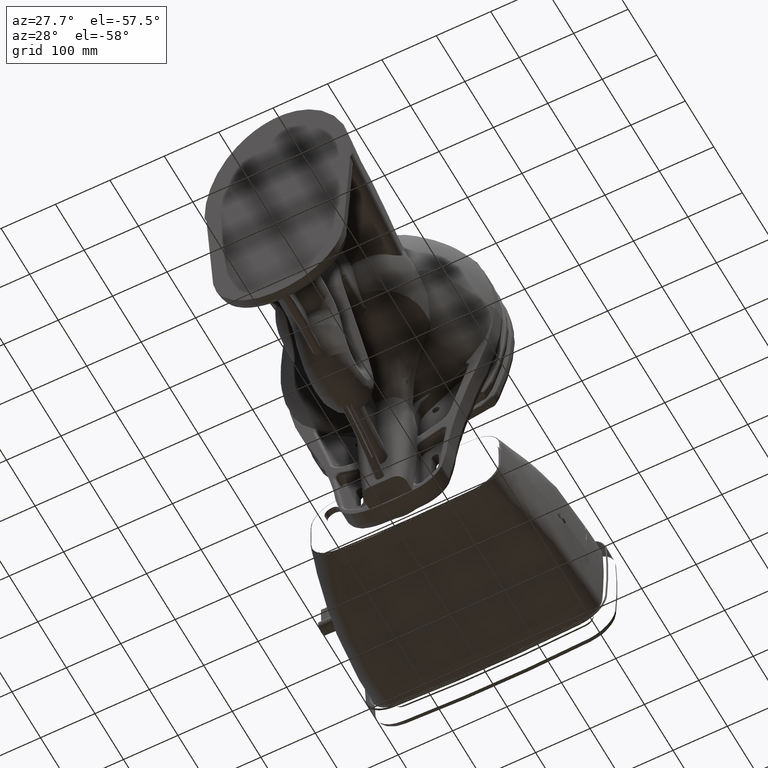
[diagram: clean part render]
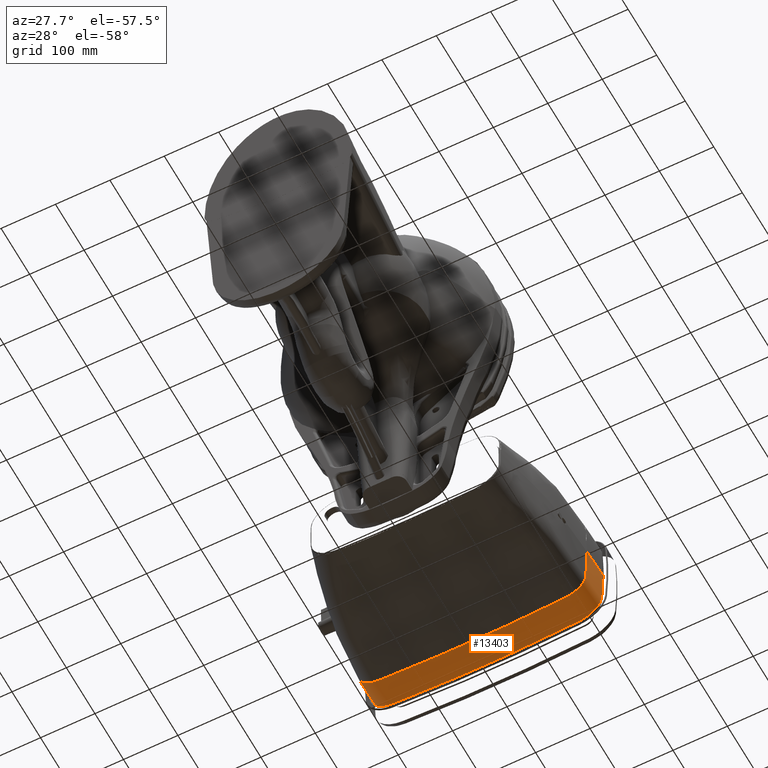
[diagram: same view with one face highlighted and labeled with its STEP entity id]
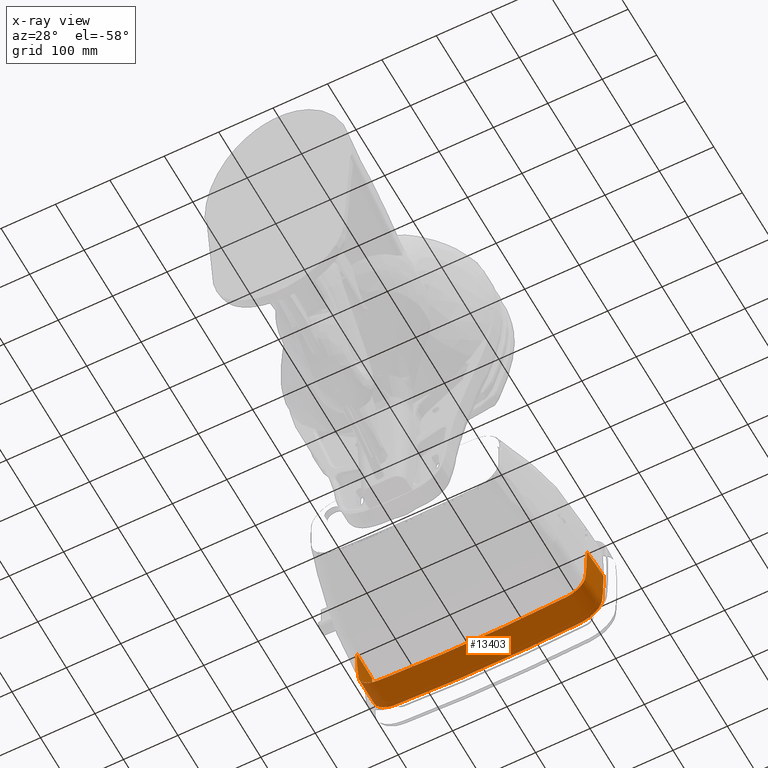
[diagram: x-ray of the same camera — body ghosted, the highlighted face saturated]
A machine part, auxiliary view. The second image highlights one B-rep face of the part: STEP entity #13403.
The next image is the same camera in x-ray: the body ghosted, the highlighted face saturated — about 0% of this face is hidden behind the body in this view.
In plain terms, the highlighted face is a freeform B-spline surface patch.
Its self-contained STEP definition (entity closure, byte-faithful):
#46 = CARTESIAN_POINT ( 'NONE',  ( 6.820338753599607200, 15.85406676531614200, 26.71273399184173400 ) ) ;
#702 = CARTESIAN_POINT ( 'NONE',  ( 5.117396129576771800, 15.98755824814606200, 26.71256506782086900 ) ) ;
#751 = CARTESIAN_POINT ( 'NONE',  ( 3.424997761772677700, 16.10240241501496100, 27.42073061689685100 ) ) ;
#1165 = B_SPLINE_CURVE_WITH_KNOTS ( 'NONE', 3,
 ( #134198, #106190, #61450, #30761, #137474, #92822, #154161, #106838, #16113, #78826, #168208, #92151, #62111, #94131, #14797, #62777, #122198, #46119, #123498, #1373, #152839, #32091, #46, #153503, #702, #138800, #78172, #168859, #185548, #121523, #76861, #184903, #183591, #47422, #76204, #107504, #169537, #152188, #16772, #31429, #93486, #122856, #108173, #138144, #2039, #46769, #77533, #30112, #184253, #136830, #108837, #45477, #17436, #60800, #182931, #124144 ),
 .UNSPECIFIED., .F., .F.,
 ( 4, 1, 1, 1, 2, 1, 1, 1, 1, 1, 1, 1, 1, 1, 1, 1, 1, 1, 1, 1, 2, 1, 1, 1, 1, 1, 1, 1, 2, 1, 1, 1, 1, 1, 1, 1, 1, 1, 1, 1, 1, 1, 1, 1, 2, 1, 1, 1, 1, 4 ),
 ( 0.0000000000000000000, 0.01213270309699998600, 0.02439544432099999300, 0.03665818554499999900, 0.04892092676799997300, 0.05265142102800002300, 0.05638191528899999500, 0.06011240954899999000, 0.06384290380899998500, 0.06757339806899997900, 0.07130389232899997400, 0.07503438658900002400, 0.07876488084900001900, 0.08249537510999999100, 0.08622586936999998600, 0.08995636362999998000, 0.09368685788999997500, 0.09741735215000002500, 0.1011478464100000200, 0.1048783406700000100, 0.1086088349300000100, 0.1439461980399999700, 0.1792835611490000100, 0.2146209242580000000, 0.2499582873680000200, 0.2852956504770000100, 0.3206330135859999900, 0.3559703766960000100, 0.3913077398050000000, 0.3950382340649999900, 0.3987687283249999900, 0.4024992225852199700, 0.4062297168453600200, 0.4099602111055000200, 0.4136907053656300200, 0.4174211996257700100, 0.4211516938859000100, 0.4248821881460400100, 0.4286126824061700100, 0.4323431766663100000, 0.4360736709264400000, 0.4398041651865800000, 0.4435346594467199900, 0.4472651537068499900, 0.4509956479669899900, 0.4571211919711100100, 0.4632467359752400200, 0.4754978239834900000, 0.4877489119917500200, 0.5000000000000000000 ),
 .UNSPECIFIED. ) ;
#1373 = CARTESIAN_POINT ( 'NONE',  ( 7.205990626616142900, 15.75723881719685000, 26.71285674890630100 ) ) ;
#2039 = CARTESIAN_POINT ( 'NONE',  ( -8.114598921248031600, 14.98711700275196900, 26.71383803616535600 ) ) ;
#2750 = CARTESIAN_POINT ( 'NONE',  ( 7.074353315819291900, 15.82779921444763700, 27.42107806852834500 ) ) ;
#3405 = CARTESIAN_POINT ( 'NONE',  ( 7.205990626616142900, 15.75723881719685000, 26.71285674890630100 ) ) ;
#4724 = CARTESIAN_POINT ( 'NONE',  ( 5.117396129576771800, 15.98755824814606200, 26.71256506782086900 ) ) ;
#4882 = CARTESIAN_POINT ( 'NONE',  ( -8.364405608354331900, 12.25566634200157500, 28.13392187657874300 ) ) ;
#5215 = CARTESIAN_POINT ( 'NONE',  ( 1.697676434187323200, 16.18155271733228400, 28.83724493587283500 ) ) ;
#5391 = CARTESIAN_POINT ( 'NONE',  ( 7.814928525689370400, 15.32803684059882000, 26.71340118047165600 ) ) ;
#5970 = ORIENTED_EDGE ( 'NONE', *, *, #29992, .T. ) ;
#6040 = CARTESIAN_POINT ( 'NONE',  ( 8.245996462256300700, 14.51698236082086500, 28.13104813365118400 ) ) ;
#6529 = CARTESIAN_POINT ( 'NONE',  ( -6.844335825759841900, 15.89442037892795400, 28.83761155912677400 ) ) ;
#6701 = CARTESIAN_POINT ( 'NONE',  ( 7.966674974724015500, 15.12455429737559200, 26.71365932957283500 ) ) ;
#7386 = CARTESIAN_POINT ( 'NONE',  ( 8.007568115939765400, 15.11846947229645700, 27.42197785453898000 ) ) ;
#7536 = CARTESIAN_POINT ( 'NONE',  ( -8.171396365791338200, 14.81303516229645800, 28.13067689441141900 ) ) ;
#7852 = VERTEX_POINT ( 'NONE', #32410 ) ;
#8196 = CARTESIAN_POINT ( 'NONE',  ( -7.244474834169292200, 15.77970465160315100, 27.42114293884449000 ) ) ;
#8851 = CARTESIAN_POINT ( 'NONE',  ( -7.959968529641733100, 15.18201385660275400, 28.83851579933858400 ) ) ;
#9201 = CARTESIAN_POINT ( 'NONE',  ( 8.270054468477953300, 14.47236950709842600, 28.83941187661889700 ) ) ;
#9372 = CARTESIAN_POINT ( 'NONE',  ( 8.283005298174803200, 13.73978700208346400, 27.42372712878189100 ) ) ;
#11297 = CARTESIAN_POINT ( 'NONE',  ( 8.294849570335433200, 11.53526371568543300, 26.71821353091260000 ) ) ;
#12206 = CARTESIAN_POINT ( 'NONE',  ( -7.726833724334646500, 15.48620813491968600, 26.71320465772992100 ) ) ;
#13403 = ADVANCED_FACE ( 'NONE', ( #77949 ), #165489, .T. ) ;
#13517 = CARTESIAN_POINT ( 'NONE',  ( -8.047205145055118100, 15.09920833553700900, 27.42200660560078500 ) ) ;
#14797 = CARTESIAN_POINT ( 'NONE',  ( 7.730387007674016400, 15.41678743216929200, 26.71328859153937400 ) ) ;
#15381 = ORIENTED_EDGE ( 'NONE', *, *, #101768, .T. ) ;
#15504 = CARTESIAN_POINT ( 'NONE',  ( -1.712116870024409600, 16.16953481721889900, 28.12895395835354500 ) ) ;
#16113 = CARTESIAN_POINT ( 'NONE',  ( 8.139288975789369800, 14.74034981362952700, 26.71414678301575300 ) ) ;
#16772 = CARTESIAN_POINT ( 'NONE',  ( -7.628566436346456900, 15.56419633512244100, 26.71310567561928900 ) ) ;
#16818 = CARTESIAN_POINT ( 'NONE',  ( -1.773395855447637900, 16.13442800609055200, 26.71238056189330800 ) ) ;
#17299 = ORIENTED_EDGE ( 'NONE', *, *, #155915, .T. ) ;
#17436 = CARTESIAN_POINT ( 'NONE',  ( -8.342651434921259900, 13.06672751769724300, 26.71627479329921000 ) ) ;
#18193 = CARTESIAN_POINT ( 'NONE',  ( 8.338758128550393800, 11.53598064712992200, 27.42652342462598700 ) ) ;
#19454 = CARTESIAN_POINT ( 'NONE',  ( 6.820338753599607200, 15.85406676531614200, 26.71273399184173400 ) ) ;
#19507 = CARTESIAN_POINT ( 'NONE',  ( 8.381914660978347700, 11.53724875084055200, 28.84313608936495800 ) ) ;
#20115 = CARTESIAN_POINT ( 'NONE',  ( 6.145537790224803000, 15.95972893014173300, 28.83752520364213000 ) ) ;
#20265 = CARTESIAN_POINT ( 'NONE',  ( -8.289343499102363600, 14.10919880750275700, 26.71495203402598400 ) ) ;
#20595 = CARTESIAN_POINT ( 'NONE',  ( 3.380722545196339200, 16.12830387691062800, 28.83731204895472900 ) ) ;
#20763 = CARTESIAN_POINT ( 'NONE',  ( 8.047034517376378200, 15.06976429123622000, 28.83865392912362700 ) ) ;
#21171 = CARTESIAN_POINT ( 'NONE',  ( -8.367655706444882200, 11.52966417506102400, 27.42653592578110300 ) ) ;
#21254 = CARTESIAN_POINT ( 'NONE',  ( -8.257372467519685300, 14.46467991610433200, 28.83942607199685100 ) ) ;
#21433 = CARTESIAN_POINT ( 'NONE',  ( 7.775694528317323800, 15.41561178387637700, 28.83821517165472800 ) ) ;
#22089 = CARTESIAN_POINT ( 'NONE',  ( 8.181520603423623000, 14.79269551425236200, 28.83900545312362200 ) ) ;
#22238 = CARTESIAN_POINT ( 'NONE',  ( -8.250921822181103600, 14.57423412914448900, 26.71436196129291200 ) ) ;
#22578 = CARTESIAN_POINT ( 'NONE',  ( 7.300235929260237500, 15.75049347437874100, 28.83779038301457100 ) ) ;
#22746 = CARTESIAN_POINT ( 'NONE',  ( 8.090607919765355800, 14.88051568780472600, 26.71396894591220700 ) ) ;
#22895 = CARTESIAN_POINT ( 'NONE',  ( -8.170157520011811100, 14.84667784484370200, 27.42232706320708500 ) ) ;
#23233 = CARTESIAN_POINT ( 'NONE',  ( 8.382104873937008100, 11.77810576095157700, 28.84283047668071000 ) ) ;
#23543 = CARTESIAN_POINT ( 'NONE',  ( -7.423074293724409900, 15.67743171970157500, 28.83788704170078900 ) ) ;
#24063 = CARTESIAN_POINT ( 'NONE',  ( 8.303418436544488300, 14.08234965605748100, 28.83990674631575100 ) ) ;
#24720 = CARTESIAN_POINT ( 'NONE',  ( 8.360530604722047300, 11.78352305722559000, 28.13451646652677200 ) ) ;
#26007 = CARTESIAN_POINT ( 'NONE',  ( 8.338956335507086600, 11.78894035449842400, 27.42620245537125700 ) ) ;
#27539 = CARTESIAN_POINT ( 'NONE',  ( -7.547085508712600100, 15.59655134183110200, 28.83798970047952900 ) ) ;
#28185 = CARTESIAN_POINT ( 'NONE',  ( -7.662982266696849900, 15.50629594450630000, 28.83810425261969000 ) ) ;
#28839 = CARTESIAN_POINT ( 'NONE',  ( -7.786987492893700800, 15.40948092409448800, 28.12991998796417500 ) ) ;
#29505 = CARTESIAN_POINT ( 'NONE',  ( -5.142348985208661500, 16.01198033026378200, 27.42084765015630100 ) ) ;
#29992 = EDGE_CURVE ( 'NONE', #144015, #145002, #114719, .T. ) ;
#30112 = CARTESIAN_POINT ( 'NONE',  ( -8.250921822181103600, 14.57423412914448900, 26.71436196129291200 ) ) ;
#30761 = CARTESIAN_POINT ( 'NONE',  ( 8.270115028075984800, 13.05832530963071000, 26.71628099316417600 ) ) ;
#30806 = CARTESIAN_POINT ( 'NONE',  ( -1.740408468236220600, 16.15751691652795300, 27.42066207174094900 ) ) ;
#31429 = CARTESIAN_POINT ( 'NONE',  ( -7.726833724334646500, 15.48620813491968600, 26.71320465772992100 ) ) ;
#32091 = CARTESIAN_POINT ( 'NONE',  ( 6.927765112602362100, 15.83874974462795200, 26.71275339807165500 ) ) ;
#32142 = CARTESIAN_POINT ( 'NONE',  ( -0.003763553027725196900, 16.18783101219921200, 28.12893028436024100 ) ) ;
#32410 = CARTESIAN_POINT ( 'NONE',  ( 8.294849570335433200, 11.53526371568543300, 26.71821353091260000 ) ) ;
#32845 = CARTESIAN_POINT ( 'NONE',  ( 8.360336394764173600, 11.53661469898582800, 28.13482975749527200 ) ) ;
#34121 = CARTESIAN_POINT ( 'NONE',  ( 6.857831809235827700, 15.89446856055472400, 28.83760781830669700 ) ) ;
#34593 = CARTESIAN_POINT ( 'NONE',  ( -8.364692668137795600, 12.24143547682637800, 28.84224707574528100 ) ) ;
#35418 = CARTESIAN_POINT ( 'NONE',  ( 7.327827232625197400, 15.70282903097559100, 26.71292575431929400 ) ) ;
#35559 = CARTESIAN_POINT ( 'NONE',  ( -8.368056898019686300, 11.53146127135354200, 28.84314793100236300 ) ) ;
#36064 = CARTESIAN_POINT ( 'NONE',  ( 8.208289386228740300, 14.67940403307834700, 28.13084205421850500 ) ) ;
#36218 = CARTESIAN_POINT ( 'NONE',  ( -8.364692668137795600, 12.24143547682637800, 28.84224707574528100 ) ) ;
#36573 = CARTESIAN_POINT ( 'NONE',  ( -8.221452992547243700, 14.62697880744842600, 28.83922012858307200 ) ) ;
#36888 = CARTESIAN_POINT ( 'NONE',  ( -8.367878624488188400, 11.76739981768464600, 27.42623427377086600 ) ) ;
#37222 = CARTESIAN_POINT ( 'NONE',  ( 8.381914660978347700, 11.53724875084055200, 28.84313608936495800 ) ) ;
#37390 = CARTESIAN_POINT ( 'NONE',  ( 8.232270613449999900, 14.63852166635315100, 28.83920106375984800 ) ) ;
#38726 = CARTESIAN_POINT ( 'NONE',  ( 7.559121946072834500, 15.59578354150669300, 28.12967947578661300 ) ) ;
#38870 = CARTESIAN_POINT ( 'NONE',  ( -8.040980652618111800, 15.05658962858267800, 28.83867496625905600 ) ) ;
#39207 = CARTESIAN_POINT ( 'NONE',  ( 8.378078789854724200, 12.26234228614370100, 28.84221605180314900 ) ) ;
#40029 = CARTESIAN_POINT ( 'NONE',  ( 8.237310941054724700, 14.44403481517441000, 27.42283355266062700 ) ) ;
#40687 = CARTESIAN_POINT ( 'NONE',  ( 8.176671426815747900, 14.58514842455984400, 26.71434370104291400 ) ) ;
#44200 = CARTESIAN_POINT ( 'NONE',  ( -7.966612341858268400, 15.19683688230275800, 28.13018985066771900 ) ) ;
#45477 = CARTESIAN_POINT ( 'NONE',  ( -8.314766496027559100, 13.67315768251850500, 26.71550531383543300 ) ) ;
#45527 = CARTESIAN_POINT ( 'NONE',  ( -0.01445268623980314900, 16.17615656722913500, 27.42063795722480900 ) ) ;
#46119 = CARTESIAN_POINT ( 'NONE',  ( 7.440036872635826800, 15.64107204767047300, 26.71300408484567200 ) ) ;
#46769 = CARTESIAN_POINT ( 'NONE',  ( -8.170095904228347200, 14.86097686330393800, 26.71399810462165500 ) ) ;
#47422 = CARTESIAN_POINT ( 'NONE',  ( -7.000999992393700700, 15.83868281605512100, 26.71275722353110300 ) ) ;
#47464 = CARTESIAN_POINT ( 'NONE',  ( -6.789463893976377800, 15.89415399776417300, 28.12930474020591000 ) ) ;
#49914 = CARTESIAN_POINT ( 'NONE',  ( -7.959968529641733100, 15.18201385660275400, 28.83851579933858400 ) ) ;
#50090 = CARTESIAN_POINT ( 'NONE',  ( 7.073227029608268900, 15.80307607132047200, 26.71279862372834700 ) ) ;
#50562 = CARTESIAN_POINT ( 'NONE',  ( -8.368056898019686300, 11.53146127135354200, 28.84314793100236300 ) ) ;
#50753 = CARTESIAN_POINT ( 'NONE',  ( 7.430941877272441200, 15.68090300037677300, 28.83787864813819400 ) ) ;
#50907 = CARTESIAN_POINT ( 'NONE',  ( -8.282158620472440400, 14.19103178239448800, 28.83977329846850800 ) ) ;
#51564 = CARTESIAN_POINT ( 'NONE',  ( -8.317786740586614200, 13.60271945262086700, 28.13221264892125700 ) ) ;
#51895 = CARTESIAN_POINT ( 'NONE',  ( -7.770583317677165700, 15.40695909749055300, 28.83823032557559100 ) ) ;
#52569 = CARTESIAN_POINT ( 'NONE',  ( 8.181520603423623000, 14.79269551425236200, 28.83900545312362200 ) ) ;
#52737 = CARTESIAN_POINT ( 'NONE',  ( 8.027301316158268900, 15.09411688126692900, 28.13031589233189300 ) ) ;
#52886 = CARTESIAN_POINT ( 'NONE',  ( -8.221452992547243700, 14.62697880744842600, 28.83922012858307200 ) ) ;
#53231 = CARTESIAN_POINT ( 'NONE',  ( 7.430941877272441200, 15.68090300037677300, 28.83787864813819400 ) ) ;
#53404 = CARTESIAN_POINT ( 'NONE',  ( 8.032609422743702200, 15.00810123910866300, 26.71380707391693200 ) ) ;
#54205 = CARTESIAN_POINT ( 'NONE',  ( -7.001827913755906100, 15.85779782043582700, 28.83765807013898200 ) ) ;
#54716 = CARTESIAN_POINT ( 'NONE',  ( 8.306185185396064000, 13.69684417501850300, 28.13208875396378500 ) ) ;
#55204 = CARTESIAN_POINT ( 'NONE',  ( 7.668665226300787700, 15.51312328739803100, 28.83809147243386000 ) ) ;
#55374 = CARTESIAN_POINT ( 'NONE',  ( 8.295050229291732100, 11.79204918697401500, 26.71788770731732000 ) ) ;
#56018 = CARTESIAN_POINT ( 'NONE',  ( 8.329365072617717300, 13.65390134795236300, 28.84045037814606300 ) ) ;
#57577 = CARTESIAN_POINT ( 'NONE',  ( -7.973256153074803600, 15.21165990800118300, 27.42186390099684700 ) ) ;
#58863 = CARTESIAN_POINT ( 'NONE',  ( -8.044092898834646700, 15.07789898206023500, 28.13034078642992200 ) ) ;
#59521 = CARTESIAN_POINT ( 'NONE',  ( -7.575769556925195900, 15.58939687322677200, 28.12969164398189300 ) ) ;
#60800 = CARTESIAN_POINT ( 'NONE',  ( -8.363896666787400800, 12.27816013649449000, 26.71727537670630400 ) ) ;
#60850 = CARTESIAN_POINT ( 'NONE',  ( -0.03632076545090551200, 16.15329068761023700, 26.71235616139724900 ) ) ;
#61450 = CARTESIAN_POINT ( 'NONE',  ( 8.290589785203543700, 12.30827967441102500, 26.71723268685551000 ) ) ;
#61493 = CARTESIAN_POINT ( 'NONE',  ( 1.711503094763346500, 16.15751691593976200, 27.42066114473937000 ) ) ;
#62111 = CARTESIAN_POINT ( 'NONE',  ( 7.893835838705905800, 15.23090308977795400, 26.71352440793149800 ) ) ;
#62777 = CARTESIAN_POINT ( 'NONE',  ( 7.640210983660236500, 15.49809260273425300, 26.71318545127952900 ) ) ;
#62828 = CARTESIAN_POINT ( 'NONE',  ( -6.131686628771653600, 15.95972893223346600, 28.83752850065905800 ) ) ;
#65279 = CARTESIAN_POINT ( 'NONE',  ( -7.662982266696849900, 15.50629594450630000, 28.83810425261969000 ) ) ;
#65461 = CARTESIAN_POINT ( 'NONE',  ( 5.048359173211023800, 16.04036832241417400, 28.83742317858700900 ) ) ;
#65944 = CARTESIAN_POINT ( 'NONE',  ( -8.368272122059055500, 11.76140756724763900, 28.84285616254212700 ) ) ;
#66777 = CARTESIAN_POINT ( 'NONE',  ( 8.119369192399212000, 14.93613963779094600, 28.83882346001417900 ) ) ;
#66928 = CARTESIAN_POINT ( 'NONE',  ( -8.364118548570866500, 12.26989720717559100, 27.42559667641259900 ) ) ;
#67182 = CARTESIAN_POINT ( 'NONE',  ( -8.368056898019686300, 11.53146127135354200, 28.84314793100236300 ) ) ;
#67271 = CARTESIAN_POINT ( 'NONE',  ( -7.423074293724409900, 15.67743171970157500, 28.83788704170078900 ) ) ;
#67439 = CARTESIAN_POINT ( 'NONE',  ( 7.849725218903543600, 15.33211784033700900, 27.42170680811732500 ) ) ;
#68244 = CARTESIAN_POINT ( 'NONE',  ( -8.217068573988187900, 14.70500648389685100, 27.42250683622637900 ) ) ;
#68587 = CARTESIAN_POINT ( 'NONE',  ( 7.874665861335434300, 15.30925645247519800, 28.83835009457519800 ) ) ;
#69260 = CARTESIAN_POINT ( 'NONE',  ( 7.014129812242127400, 15.85817639174330800, 28.83765382583465000 ) ) ;
#69580 = CARTESIAN_POINT ( 'NONE',  ( -7.979920914287402100, 15.21077182368779500, 26.71355421444960900 ) ) ;
#70574 = CARTESIAN_POINT ( 'NONE',  ( 8.232270613449999900, 14.63852166635315100, 28.83920106375984800 ) ) ;
#70740 = CARTESIAN_POINT ( 'NONE',  ( 8.338758128550393800, 11.53598064712992200, 27.42652342462598700 ) ) ;
#71406 = CARTESIAN_POINT ( 'NONE',  ( 8.378078789854724200, 12.26234228614370100, 28.84221605180314900 ) ) ;
#73605 = CARTESIAN_POINT ( 'NONE',  ( -7.290920875736220300, 15.74837122757322800, 28.83779699425866000 ) ) ;
#74272 = CARTESIAN_POINT ( 'NONE',  ( -7.685338049909449700, 15.50354463835590800, 28.12980060744803300 ) ) ;
#74930 = CARTESIAN_POINT ( 'NONE',  ( -6.892980285397639400, 15.85406676765275500, 26.71273767451811000 ) ) ;
#76204 = CARTESIAN_POINT ( 'NONE',  ( -7.148228902389764300, 15.80248308122086700, 26.71280319528503700 ) ) ;
#76861 = CARTESIAN_POINT ( 'NONE',  ( -5.190037660421260100, 15.98755824990236400, 26.71256783585551600 ) ) ;
#76911 = CARTESIAN_POINT ( 'NONE',  ( 3.380722545196339200, 16.12830387691062800, 28.83731204895472900 ) ) ;
#77533 = CARTESIAN_POINT ( 'NONE',  ( -8.216067775204724200, 14.72386027669015700, 26.71417209804015900 ) ) ;
#77949 = FACE_OUTER_BOUND ( 'NONE', #126641, .T. ) ;
#78172 = CARTESIAN_POINT ( 'NONE',  ( 1.700754323552244200, 16.13442800549881900, 26.71237962891929400 ) ) ;
#78215 = CARTESIAN_POINT ( 'NONE',  ( 7.443213036059843200, 15.67112709987519800, 28.12958390685945200 ) ) ;
#78826 = CARTESIAN_POINT ( 'NONE',  ( 8.090607919765355800, 14.88051568780472600, 26.71396894591220700 ) ) ;
#78869 = CARTESIAN_POINT ( 'NONE',  ( 6.817052749810236500, 15.87893372632834700, 27.42101325534212800 ) ) ;
#80183 = CARTESIAN_POINT ( 'NONE',  ( 7.044241564030707900, 15.84298780359606300, 28.12936594768071100 ) ) ;
#80588 = CARTESIAN_POINT ( 'NONE',  ( -8.367482814661418200, 11.52876559675512000, 26.71822625071338900 ) ) ;
#80678 = CARTESIAN_POINT ( 'NONE',  ( -1.683825272812204700, 16.18155271790826800, 28.83724584396614400 ) ) ;
#80849 = CARTESIAN_POINT ( 'NONE',  ( 3.423494116561653500, 16.07872005704999900, 26.71244985159291500 ) ) ;
#80999 = CARTESIAN_POINT ( 'NONE',  ( -8.367856302232283400, 11.53056272370787400, 28.13484192889134400 ) ) ;
#81505 = CARTESIAN_POINT ( 'NONE',  ( 7.730387007674016400, 15.41678743216929200, 26.71328859153937400 ) ) ;
#81657 = CARTESIAN_POINT ( 'NONE',  ( -8.295252042437008200, 13.98829738459724400, 28.84003054254881700 ) ) ;
#82170 = CARTESIAN_POINT ( 'NONE',  ( 7.862195540119686600, 15.32068714690669400, 28.13002845184566800 ) ) ;
#82652 = CARTESIAN_POINT ( 'NONE',  ( -8.282158620472440400, 14.19103178239448800, 28.83977329846850800 ) ) ;
#82830 = CARTESIAN_POINT ( 'NONE',  ( 8.097435225179921800, 14.96658489291771600, 28.13047769310472600 ) ) ;
#82973 = CARTESIAN_POINT ( 'NONE',  ( -8.252334360960631400, 14.55150138047362200, 27.42270162142205000 ) ) ;
#83498 = CARTESIAN_POINT ( 'NONE',  ( 7.965229200355119100, 15.19399479024488300, 28.83849632059645900 ) ) ;
#83653 = CARTESIAN_POINT ( 'NONE',  ( -8.172635211570867100, 14.77939248074763900, 28.83902672461457000 ) ) ;
#84320 = CARTESIAN_POINT ( 'NONE',  ( -7.150597506748031400, 15.80880401590118100, 28.83772027612677000 ) ) ;
#84965 = CARTESIAN_POINT ( 'NONE',  ( -7.902178851303149900, 15.30991704386299200, 26.71342839265905800 ) ) ;
#85124 = ORIENTED_EDGE ( 'NONE', *, *, #195502, .T. ) ;
#85288 = CARTESIAN_POINT ( 'NONE',  ( 7.965229200355119100, 15.19399479024488300, 28.83849632059645900 ) ) ;
#85463 = CARTESIAN_POINT ( 'NONE',  ( 8.356341867637795000, 12.27991509063267700, 28.13388661811456600 ) ) ;
#85468 = CARTESIAN_POINT ( 'NONE',  ( -8.367482814661418200, 11.52876559675512000, 26.71822625071338900 ) ) ;
#85953 = CARTESIAN_POINT ( 'NONE',  ( 8.047034517376378200, 15.06976429123622000, 28.83865392912362700 ) ) ;
#86781 = CARTESIAN_POINT ( 'NONE',  ( 8.381914660978347700, 11.53724875084055200, 28.84313608936495800 ) ) ;
#88950 = CARTESIAN_POINT ( 'NONE',  ( -7.332197358948819900, 15.73534844669488400, 28.12950638718071200 ) ) ;
#90234 = CARTESIAN_POINT ( 'NONE',  ( -6.292819136405511500, 15.90508746447874000, 26.71267277547756100 ) ) ;
#90898 = CARTESIAN_POINT ( 'NONE',  ( -3.496135648437795700, 16.07872005822874000, 26.71245170984173400 ) ) ;
#92151 = CARTESIAN_POINT ( 'NONE',  ( 7.966674974724015500, 15.12455429737559200, 26.71365932957283500 ) ) ;
#92194 = CARTESIAN_POINT ( 'NONE',  ( 3.402860153984488300, 16.11535314596338600, 28.12902133342598500 ) ) ;
#92822 = CARTESIAN_POINT ( 'NONE',  ( 8.211025753881497000, 14.19989468168149900, 26.71483252297322900 ) ) ;
#93486 = CARTESIAN_POINT ( 'NONE',  ( -7.817852654318898000, 15.40152280610630000, 26.71331213557991900 ) ) ;
#93537 = CARTESIAN_POINT ( 'NONE',  ( 7.440036872635826800, 15.64107204767047300, 26.71300408484567200 ) ) ;
#94131 = CARTESIAN_POINT ( 'NONE',  ( 7.814928525689370400, 15.32803684059882000, 26.71340118047165600 ) ) ;
#94177 = CARTESIAN_POINT ( 'NONE',  ( 6.891734967024409500, 15.87908855756102400, 28.12932018201220400 ) ) ;
#94815 = CARTESIAN_POINT ( 'NONE',  ( 7.211364553827165100, 15.78120267893425300, 27.42113715598346600 ) ) ;
#95484 = CARTESIAN_POINT ( 'NONE',  ( 6.220177604590944900, 15.90508746234685100, 26.71266941514448900 ) ) ;
#96150 = CARTESIAN_POINT ( 'NONE',  ( 5.113443611787795700, 16.01198032851653600, 27.42084489598976700 ) ) ;
#96299 = CARTESIAN_POINT ( 'NONE',  ( -8.367655706444882200, 11.52966417506102400, 27.42653592578110300 ) ) ;
#96638 = CARTESIAN_POINT ( 'NONE',  ( -3.366871383803149900, 16.12830387806023700, 28.83731386100354400 ) ) ;
#96949 = CARTESIAN_POINT ( 'NONE',  ( -8.268932863720472400, 14.39450870822519800, 28.13120797000826900 ) ) ;
#97290 = CARTESIAN_POINT ( 'NONE',  ( -8.271379596499999200, 14.34915596510315100, 28.83957265890669000 ) ) ;
#97457 = CARTESIAN_POINT ( 'NONE',  ( 7.667409712087007300, 15.51231217968267900, 28.12978535976495900 ) ) ;
#97614 = CARTESIAN_POINT ( 'NONE',  ( -8.367707962700787800, 11.76866888063385900, 26.71792184828110500 ) ) ;
#98130 = CARTESIAN_POINT ( 'NONE',  ( 7.640210983660236500, 15.49809260273425300, 26.71318545127952900 ) ) ;
#98286 = CARTESIAN_POINT ( 'NONE',  ( -8.315969329807085600, 13.64669587184960700, 27.42384970554764200 ) ) ;
#98623 = CARTESIAN_POINT ( 'NONE',  ( 7.775694528317323800, 15.41561178387637700, 28.83821517165472800 ) ) ;
#98947 = CARTESIAN_POINT ( 'NONE',  ( -8.254853414740157500, 14.50809064878976400, 28.13106384720866500 ) ) ;
#99463 = CARTESIAN_POINT ( 'NONE',  ( 7.553705246285827200, 15.60161301118386000, 28.83797922267323300 ) ) ;
#99604 = CARTESIAN_POINT ( 'NONE',  ( -7.458162793937008300, 15.66685178885551400, 28.12959333333818900 ) ) ;
#100120 = CARTESIAN_POINT ( 'NONE',  ( 8.270115028075984800, 13.05832530963071000, 26.71628099316417600 ) ) ;
#100607 = CARTESIAN_POINT ( 'NONE',  ( 7.161448213250394300, 15.80988465059291300, 28.83771506149212600 ) ) ;
#101768 = EDGE_CURVE ( 'NONE', #145002, #7852, #169376, .T. ) ;
#102716 = CARTESIAN_POINT ( 'NONE',  ( 8.382104873937008100, 11.77810576095157700, 28.84283047668071000 ) ) ;
#103614 = CARTESIAN_POINT ( 'NONE',  ( -7.770583317677165700, 15.40695909749055300, 28.83823032557559100 ) ) ;
#104925 = CARTESIAN_POINT ( 'NONE',  ( -7.407613190370079300, 15.69952942314212800, 26.71293389821102300 ) ) ;
#105591 = CARTESIAN_POINT ( 'NONE',  ( -6.844335825759841900, 15.89442037892795400, 28.83761155912677400 ) ) ;
#106190 = CARTESIAN_POINT ( 'NONE',  ( 8.295050229291732100, 11.79204918697401500, 26.71788770731732000 ) ) ;
#106838 = CARTESIAN_POINT ( 'NONE',  ( 8.176671426815747900, 14.58514842455984400, 26.71434370104291400 ) ) ;
#107504 = CARTESIAN_POINT ( 'NONE',  ( -7.283236292381889900, 15.75559683298701000, 26.71286272339370200 ) ) ;
#107556 = CARTESIAN_POINT ( 'NONE',  ( -7.053618752968504600, 15.84253076036574900, 28.12937031354921300 ) ) ;
#108173 = CARTESIAN_POINT ( 'NONE',  ( -7.979920914287402100, 15.21077182368779500, 26.71355421444960900 ) ) ;
#108223 = CARTESIAN_POINT ( 'NONE',  ( -3.366871383803149900, 16.12830387806023700, 28.83731386100354400 ) ) ;
#108837 = CARTESIAN_POINT ( 'NONE',  ( -8.289343499102363600, 14.10919880750275700, 26.71495203402598400 ) ) ;
#110681 = CARTESIAN_POINT ( 'NONE',  ( -8.368056898019686300, 11.53146127135354200, 28.84314793100236300 ) ) ;
#110854 = CARTESIAN_POINT ( 'NONE',  ( 6.746820827233465300, 15.90937426557480400, 28.83758893493937200 ) ) ;
#111337 = CARTESIAN_POINT ( 'NONE',  ( 0.006925580184330708400, 16.19950545816850300, 28.83722261049409500 ) ) ;
#111660 = CARTESIAN_POINT ( 'NONE',  ( -8.368075373271654600, 11.76440369246693000, 28.13454521865669400 ) ) ;
#112003 = CARTESIAN_POINT ( 'NONE',  ( -8.040980652618111800, 15.05658962858267800, 28.83867496625905600 ) ) ;
#112172 = CARTESIAN_POINT ( 'NONE',  ( 7.948631580138188800, 15.21195157842362300, 28.13016639830826900 ) ) ;
#112325 = CARTESIAN_POINT ( 'NONE',  ( -8.266486130940943900, 14.43986145034606300, 27.42284328011141900 ) ) ;
#112984 = CARTESIAN_POINT ( 'NONE',  ( -8.277375048913386400, 14.28454222837913600, 27.42304036061417700 ) ) ;
#113636 = CARTESIAN_POINT ( 'NONE',  ( -8.314766496027559100, 13.67315768251850500, 26.71550531383543300 ) ) ;
#114156 = CARTESIAN_POINT ( 'NONE',  ( 8.134867606983071700, 14.86473229553228300, 27.42229977605039800 ) ) ;
#114311 = CARTESIAN_POINT ( 'NONE',  ( -8.342651434921259900, 13.06672751769724300, 26.71627479329921000 ) ) ;
#114649 = CARTESIAN_POINT ( 'NONE',  ( 8.329365072617717300, 13.65390134795236300, 28.84045037814606300 ) ) ;
#114719 = B_SPLINE_CURVE_WITH_KNOTS ( 'NONE', 3,
 ( #110681, #65944, #34593, #156012, #188736, #157338, #82652, #97290, #21254, #36573, #127964, #188056, #112003, #49914, #143301, #51895, #65279, #158664, #67271, #140652, #172702, #174034, #6529, #125331, #187415, #172032, #96638, #80678, #111337, #5215, #20595, #128618, #192694, #115957, #161956, #69260, #100607, #22578, #53231, #190730, #55204, #98623, #68587, #85288, #85953, #129276, #52569, #70574, #9201, #159321, #146621, #114649, #145289, #39207, #23233, #37222 ),
 .UNSPECIFIED., .F., .F.,
 ( 4, 1, 1, 1, 1, 2, 1, 1, 1, 1, 1, 1, 1, 1, 1, 1, 1, 1, 1, 1, 1, 2, 1, 1, 1, 1, 1, 1, 1, 2, 1, 1, 1, 1, 1, 1, 1, 1, 1, 1, 1, 1, 1, 1, 1, 2, 1, 1, 1, 4 ),
 ( 0.0000000000000000000, 0.01225108800825000000, 0.02450217601650999900, 0.03675326402476000000, 0.04287880802888999900, 0.04900435203300999900, 0.05273484629314999900, 0.05646534055328000100, 0.06019583481342000200, 0.06392632907355999500, 0.06765682333368999700, 0.07138731759383000500, 0.07511781185396000600, 0.07884830611410000000, 0.08257880037423000200, 0.08630929463436999600, 0.09003978889449999700, 0.09377028315464000500, 0.09750077741477999900, 0.1012312716750000000, 0.1049617659350000100, 0.1086922601950000000, 0.1440296233039999900, 0.1793669864140000100, 0.2147043495229999900, 0.2500417126319999800, 0.2853790757420000000, 0.3207164388509999900, 0.3560538019600000300, 0.3913911650699999900, 0.3951216593299999900, 0.3988521535899999800, 0.4025826478499999700, 0.4063131421100000300, 0.4100436363700000200, 0.4137741306300000100, 0.4175046248900000100, 0.4212351191509999800, 0.4249656134109999800, 0.4286961076710000300, 0.4324266019310000200, 0.4361570961910000200, 0.4398875904510000100, 0.4436180847110000000, 0.4473485789719999800, 0.4510790732320000300, 0.4633418144550000000, 0.4756045556790000100, 0.4878672969030000100, 0.5000000000000000000 ),
 .UNSPECIFIED. ) ;
#115957 = CARTESIAN_POINT ( 'NONE',  ( 6.746820827233465300, 15.90937426557480400, 28.83758893493937200 ) ) ;
#116129 = CARTESIAN_POINT ( 'NONE',  ( 8.314546971294488400, 13.03850479960787600, 27.42461694577362200 ) ) ;
#116767 = CARTESIAN_POINT ( 'NONE',  ( 8.279777700322835400, 14.12822927475984300, 28.13154139589448700 ) ) ;
#120271 = CARTESIAN_POINT ( 'NONE',  ( -7.880812710874016200, 15.30730386536260000, 28.13004966103740400 ) ) ;
#120907 = CARTESIAN_POINT ( 'NONE',  ( -5.088428497999999900, 16.02617432719882000, 28.12913676873543200 ) ) ;
#121523 = CARTESIAN_POINT ( 'NONE',  ( -3.496135648437795700, 16.07872005822874000, 26.71245170984173400 ) ) ;
#121557 = VERTEX_POINT ( 'NONE', #85468 ) ;
#121576 = CARTESIAN_POINT ( 'NONE',  ( -1.683825272812204700, 16.18155271790826800, 28.83724584396614400 ) ) ;
#122198 = CARTESIAN_POINT ( 'NONE',  ( 7.543766162647638200, 15.57272560567165500, 26.71309077871732300 ) ) ;
#122247 = CARTESIAN_POINT ( 'NONE',  ( -5.034508011787401900, 16.04036832413228500, 28.83742588631496400 ) ) ;
#122856 = CARTESIAN_POINT ( 'NONE',  ( -7.902178851303149900, 15.30991704386299200, 26.71342839265905800 ) ) ;
#123498 = CARTESIAN_POINT ( 'NONE',  ( 7.327827232625197400, 15.70282903097559100, 26.71292575431929400 ) ) ;
#124144 = CARTESIAN_POINT ( 'NONE',  ( -8.367482814661418200, 11.52876559675512000, 26.71822625071338900 ) ) ;
#124193 = CARTESIAN_POINT ( 'NONE',  ( 6.925638123812992000, 15.86370855456614300, 27.42103254471771800 ) ) ;
#124624 = CARTESIAN_POINT ( 'NONE',  ( 8.381914660978347700, 11.53724875084055200, 28.84313608936495800 ) ) ;
#125331 = CARTESIAN_POINT ( 'NONE',  ( -6.732969665763779900, 15.90937426787126100, 28.83759255490197000 ) ) ;
#126162 = CARTESIAN_POINT ( 'NONE',  ( 7.161448213250394300, 15.80988465059291300, 28.83771506149212600 ) ) ;
#126641 = EDGE_LOOP ( 'NONE', ( #17299, #5970, #15381, #85124 ) ) ;
#126820 = CARTESIAN_POINT ( 'NONE',  ( 6.781936788022048500, 15.89415399545197100, 28.12930109564133800 ) ) ;
#127476 = CARTESIAN_POINT ( 'NONE',  ( 8.158194105203543600, 14.82871390489291500, 28.13065261508701200 ) ) ;
#127619 = CARTESIAN_POINT ( 'NONE',  ( -8.368272122059055500, 11.76140756724763900, 28.84285616254212700 ) ) ;
#127964 = CARTESIAN_POINT ( 'NONE',  ( -8.172635211570867100, 14.77939248074763900, 28.83902672461457000 ) ) ;
#128269 = CARTESIAN_POINT ( 'NONE',  ( -8.275938287133858000, 14.31064106034015800, 26.71469642940669000 ) ) ;
#128618 = CARTESIAN_POINT ( 'NONE',  ( 5.048359173211023800, 16.04036832241417400, 28.83742317858700900 ) ) ;
#128789 = CARTESIAN_POINT ( 'NONE',  ( 7.893835838705905800, 15.23090308977795400, 26.71352440793149800 ) ) ;
#128942 = CARTESIAN_POINT ( 'NONE',  ( -8.257372467519685300, 14.46467991610433200, 28.83942607199685100 ) ) ;
#129276 = CARTESIAN_POINT ( 'NONE',  ( 8.119369192399212000, 14.93613963779094600, 28.83882346001417900 ) ) ;
#129602 = CARTESIAN_POINT ( 'NONE',  ( -8.292999925657481300, 14.03524173643779700, 28.13166383418189300 ) ) ;
#130241 = CARTESIAN_POINT ( 'NONE',  ( -7.522432232362205300, 15.63548446571771700, 26.71301519281260200 ) ) ;
#133352 = CARTESIAN_POINT ( 'NONE',  ( 8.360336394764173600, 11.53661469898582800, 28.13482975749527200 ) ) ;
#134198 = CARTESIAN_POINT ( 'NONE',  ( 8.294849570335433200, 11.53526371568543300, 26.71821353091260000 ) ) ;
#135553 = CARTESIAN_POINT ( 'NONE',  ( -8.170095904228347200, 14.86097686330393800, 26.71399810462165500 ) ) ;
#136211 = CARTESIAN_POINT ( 'NONE',  ( -5.190037660421260100, 15.98755824990236400, 26.71256783585551600 ) ) ;
#136830 = CARTESIAN_POINT ( 'NONE',  ( -8.275938287133858000, 14.31064106034015800, 26.71469642940669000 ) ) ;
#136878 = CARTESIAN_POINT ( 'NONE',  ( -7.000999992393700700, 15.83868281605512100, 26.71275722353110300 ) ) ;
#137474 = CARTESIAN_POINT ( 'NONE',  ( 8.238108769955513100, 13.76493266881968600, 26.71538441944527900 ) ) ;
#137516 = CARTESIAN_POINT ( 'NONE',  ( -6.845958123185040400, 15.87893372865630000, 27.42101692450826500 ) ) ;
#138144 = CARTESIAN_POINT ( 'NONE',  ( -8.050949789271653500, 15.10345673908818900, 26.71369040081102500 ) ) ;
#138194 = CARTESIAN_POINT ( 'NONE',  ( -7.105409591177164900, 15.82726370129448800, 27.42108255595826400 ) ) ;
#138800 = CARTESIAN_POINT ( 'NONE',  ( 3.423494116561653500, 16.07872005704999900, 26.71244985159291500 ) ) ;
#138847 = CARTESIAN_POINT ( 'NONE',  ( -6.732969665763779900, 15.90937426787126100, 28.83759255490197000 ) ) ;
#139510 = CARTESIAN_POINT ( 'NONE',  ( 7.319144779048425400, 15.73791384513346400, 28.12949919747874000 ) ) ;
#139566 = CARTESIAN_POINT ( 'NONE',  ( 8.294849570335433200, 11.53526371568543300, 26.71821353091260000 ) ) ;
#140161 = CARTESIAN_POINT ( 'NONE',  ( 7.186406384038583900, 15.79554366476417300, 28.12942610923779400 ) ) ;
#140652 = CARTESIAN_POINT ( 'NONE',  ( -7.290920875736220300, 15.74837122757322800, 28.83779699425866000 ) ) ;
#140827 = CARTESIAN_POINT ( 'NONE',  ( 6.927765112602362100, 15.83874974462795200, 26.71275339807165500 ) ) ;
#142552 = CARTESIAN_POINT ( 'NONE',  ( -8.367856302232283400, 11.53056272370787400, 28.13484192889134400 ) ) ;
#142808 = CARTESIAN_POINT ( 'NONE',  ( 8.184308158007874900, 14.72028639980196900, 27.42248304367716500 ) ) ;
#143301 = CARTESIAN_POINT ( 'NONE',  ( -7.869707411661417000, 15.29883437454724600, 28.83836754679527600 ) ) ;
#143624 = CARTESIAN_POINT ( 'NONE',  ( -8.271379596499999200, 14.34915596510315100, 28.83957265890669000 ) ) ;
#144015 = VERTEX_POINT ( 'NONE', #50562 ) ;
#144140 = CARTESIAN_POINT ( 'NONE',  ( 8.221938456034646200, 14.56159521354134000, 27.42268438968425300 ) ) ;
#144288 = CARTESIAN_POINT ( 'NONE',  ( -8.319604151362206300, 13.55874303439094700, 28.84057559129370000 ) ) ;
#144799 = CARTESIAN_POINT ( 'NONE',  ( 7.932033959920866900, 15.22990836760118000, 27.42183647501890000 ) ) ;
#144942 = CARTESIAN_POINT ( 'NONE',  ( -8.343375424704724700, 13.04572934263031500, 27.42461225232126100 ) ) ;
#145002 = VERTEX_POINT ( 'NONE', #124624 ) ;
#145289 = CARTESIAN_POINT ( 'NONE',  ( 8.359318341733464700, 12.97314360895472500, 28.84131415299527700 ) ) ;
#145465 = CARTESIAN_POINT ( 'NONE',  ( 7.564538646859449300, 15.58995407182834800, 27.42137972789960900 ) ) ;
#145622 = CARTESIAN_POINT ( 'NONE',  ( -7.283236292381889900, 15.75559683298701000, 26.71286272339370200 ) ) ;
#146135 = CARTESIAN_POINT ( 'NONE',  ( 8.256136965100788300, 14.17410889446063000, 27.42317604447204700 ) ) ;
#146621 = CARTESIAN_POINT ( 'NONE',  ( 8.303418436544488300, 14.08234965605748100, 28.83990674631575100 ) ) ;
#148961 = CARTESIAN_POINT ( 'NONE',  ( -8.112589533814961800, 14.95008868895866000, 28.13050297755984600 ) ) ;
#149609 = CARTESIAN_POINT ( 'NONE',  ( -7.604453605137795300, 15.58224240362086600, 27.42139358648582400 ) ) ;
#150271 = CARTESIAN_POINT ( 'NONE',  ( -8.114598921248031600, 14.98711700275196900, 26.71383803616535600 ) ) ;
#150926 = CARTESIAN_POINT ( 'NONE',  ( -7.869707411661417000, 15.29883437454724600, 28.83836754679527600 ) ) ;
#151592 = CARTESIAN_POINT ( 'NONE',  ( -6.899703552972440900, 15.87903364095511800, 28.12932395535158000 ) ) ;
#152188 = CARTESIAN_POINT ( 'NONE',  ( -7.522432232362205300, 15.63548446571771700, 26.71301519281260200 ) ) ;
#152239 = CARTESIAN_POINT ( 'NONE',  ( -6.188249198984253000, 15.94479753289409600, 28.12924031944606500 ) ) ;
#152839 = CARTESIAN_POINT ( 'NONE',  ( 7.073227029608268900, 15.80307607132047200, 26.71279862372834700 ) ) ;
#152885 = CARTESIAN_POINT ( 'NONE',  ( -3.453903135226771900, 16.10240241618661400, 27.42073246420787300 ) ) ;
#153503 = CARTESIAN_POINT ( 'NONE',  ( 6.220177604590944900, 15.90508746234685100, 26.71266941514448900 ) ) ;
#154161 = CARTESIAN_POINT ( 'NONE',  ( 8.192132399835433200, 14.46899803205748100, 26.71449107490236600 ) ) ;
#155915 = EDGE_CURVE ( 'NONE', #121557, #144015, #169758, .T. ) ;
#156012 = CARTESIAN_POINT ( 'NONE',  ( -8.345451093263779500, 12.97787064599527600, 28.84131264109645800 ) ) ;
#156186 = CARTESIAN_POINT ( 'NONE',  ( 5.080901392999607000, 16.02617432546614400, 28.12913403778819400 ) ) ;
#156844 = CARTESIAN_POINT ( 'NONE',  ( 7.300235929260237500, 15.75049347437874100, 28.83779038301457100 ) ) ;
#157338 = CARTESIAN_POINT ( 'NONE',  ( -8.295252042437008200, 13.98829738459724400, 28.84003054254881700 ) ) ;
#158172 = CARTESIAN_POINT ( 'NONE',  ( 8.139288975789369800, 14.74034981362952700, 26.71414678301575300 ) ) ;
#158328 = CARTESIAN_POINT ( 'NONE',  ( -8.265065595161418700, 14.46444178852913400, 26.71450127565669400 ) ) ;
#158664 = CARTESIAN_POINT ( 'NONE',  ( -7.547085508712600100, 15.59655134183110200, 28.83798970047952900 ) ) ;
#158836 = CARTESIAN_POINT ( 'NONE',  ( 7.666154198872835200, 15.51150107196574800, 27.42147924609606600 ) ) ;
#159321 = CARTESIAN_POINT ( 'NONE',  ( 8.285018804498424300, 14.35226524777952800, 28.83956426749606500 ) ) ;
#159647 = CARTESIAN_POINT ( 'NONE',  ( -8.219260783767717600, 14.66599264567323000, 28.13086348290472600 ) ) ;
#160172 = CARTESIAN_POINT ( 'NONE',  ( 7.761066785887795300, 15.42573807698818900, 27.42158804141653800 ) ) ;
#160831 = CARTESIAN_POINT ( 'NONE',  ( 8.261164872276772500, 14.39815003147756100, 28.13119891057835200 ) ) ;
#160975 = CARTESIAN_POINT ( 'NONE',  ( -8.113090962031497700, 14.97775007732165500, 27.42216073621811400 ) ) ;
#161956 = CARTESIAN_POINT ( 'NONE',  ( 6.857831809235827700, 15.89446856055472400, 28.83760781830669700 ) ) ;
#162127 = CARTESIAN_POINT ( 'NONE',  ( 8.359318341733464700, 12.97314360895472500, 28.84131415299527700 ) ) ;
#162781 = CARTESIAN_POINT ( 'NONE',  ( 8.336932656513779300, 13.00582420428189100, 28.13296554988425400 ) ) ;
#163436 = CARTESIAN_POINT ( 'NONE',  ( 8.285018804498424300, 14.35226524777952800, 28.83956426749606500 ) ) ;
#164983 = CARTESIAN_POINT ( 'NONE',  ( -7.493251294149606800, 15.65627185800826900, 27.42129962397558900 ) ) ;
#165489 = B_SPLINE_SURFACE_WITH_KNOTS ( 'NONE', 3, 3, ( 
 ( #35559, #80999, #96299, #189064 ),
 ( #127619, #111660, #36888, #97614 ),
 ( #36218, #4882, #66928, #189726 ),
 ( #173030, #174362, #144942, #114311 ),
 ( #144288, #51564, #98286, #113636 ),
 ( #81657, #129602, #190376, #20265 ),
 ( #50907, #173695, #112984, #128269 ),
 ( #143624, #96949, #112325, #158328 ),
 ( #128942, #98947, #82973, #22238 ),
 ( #52886, #159647, #68244, #175029 ),
 ( #83653, #7536, #22895, #135553 ),
 ( #176333, #148961, #160975, #150271 ),
 ( #38870, #58863, #13517, #180363 ),
 ( #8851, #44200, #57577, #69580 ),
 ( #150926, #120271, #195040, #84965 ),
 ( #103614, #28839, #196358, #191721 ),
 ( #28185, #74272, #175682, #12206 ),
 ( #27539, #59521, #149609, #165643 ),
 ( #23543, #99604, #164983, #130241 ),
 ( #73605, #88950, #180993, #104925 ),
 ( #84320, #191059, #8196, #145622 ),
 ( #54205, #107556, #138194, #168908 ),
 ( #105591, #151592, #184305, #136878 ),
 ( #138847, #47464, #137516, #74930 ),
 ( #62828, #152239, #182322, #90234 ),
 ( #122247, #120907, #29505, #136211 ),
 ( #108223, #166949, #152885, #90898 ),
 ( #121576, #15504, #30806, #16818 ),
 ( #197654, #32142, #45527, #60850 ),
 ( #167608, #182979, #61493, #183636 ),
 ( #76911, #92194, #751, #80849 ),
 ( #65461, #156186, #96150, #4724 ),
 ( #20115, #171545, #186923, #95484 ),
 ( #110854, #126820, #78869, #19454 ),
 ( #34121, #94177, #124193, #140827 ),
 ( #170879, #80183, #2750, #50090 ),
 ( #126162, #140161, #94815, #3405 ),
 ( #156844, #139510, #172212, #35418 ),
 ( #50753, #78215, #184946, #93537 ),
 ( #99463, #38726, #145465, #174211 ),
 ( #172878, #97457, #158836, #98130 ),
 ( #21433, #190224, #160172, #81505 ),
 ( #188233, #82170, #67439, #5391 ),
 ( #83498, #112172, #144799, #128789 ),
 ( #20763, #52737, #7386, #6701 ),
 ( #66777, #82830, #173536, #53404 ),
 ( #22089, #127476, #114156, #22746 ),
 ( #37390, #36064, #142808, #158172 ),
 ( #188919, #6040, #144140, #40687 ),
 ( #163436, #160831, #40029, #176836 ),
 ( #24063, #116767, #146135, #176183 ),
 ( #56018, #54716, #9372, #191570 ),
 ( #162127, #162781, #116129, #100120 ),
 ( #71406, #85463, #192218, #178133 ),
 ( #102716, #24720, #26007, #55374 ),
 ( #86781, #133352, #70740, #11297 ) ),
 .UNSPECIFIED., .F., .F., .F.,
 ( 4, 1, 1, 1, 1, 2, 1, 1, 1, 1, 1, 1, 1, 1, 1, 1, 1, 1, 1, 1, 1, 2, 1, 1, 1, 1, 1, 1, 1, 2, 1, 1, 1, 1, 1, 1, 1, 1, 1, 1, 1, 1, 1, 1, 1, 2, 1, 1, 1, 4 ),
 ( 4, 4 ),
 ( 0.0000000000000000000, 0.01225108800825000000, 0.02450217601650999900, 0.03675326402476000000, 0.04287880802888999900, 0.04900435203300999900, 0.05273484629314999900, 0.05646534055328000100, 0.06019583481342000200, 0.06392632907355999500, 0.06765682333368999700, 0.07138731759383000500, 0.07511781185396000600, 0.07884830611410000000, 0.08257880037423000200, 0.08630929463436999600, 0.09003978889449999700, 0.09377028315464000500, 0.09750077741477999900, 0.1012312716750000000, 0.1049617659350000100, 0.1086922601950000000, 0.1440296233039999900, 0.1793669864140000100, 0.2147043495229999900, 0.2500417126319999800, 0.2853790757420000000, 0.3207164388509999900, 0.3560538019600000300, 0.3913911650699999900, 0.3951216593299999900, 0.3988521535899999800, 0.4025826478499999700, 0.4063131421100000300, 0.4100436363700000200, 0.4137741306300000100, 0.4175046248900000100, 0.4212351191509999800, 0.4249656134109999800, 0.4286961076710000300, 0.4324266019310000200, 0.4361570961910000200, 0.4398875904510000100, 0.4436180847110000000, 0.4473485789719999800, 0.4510790732320000300, 0.4633418144550000000, 0.4756045556790000100, 0.4878672969030000100, 0.5000000000000000000 ),
 ( 0.0000000000000000000, 0.1842822089300000000 ),
 .UNSPECIFIED. ) ;
#165643 = CARTESIAN_POINT ( 'NONE',  ( -7.628566436346456900, 15.56419633512244100, 26.71310567561928900 ) ) ;
#166949 = CARTESIAN_POINT ( 'NONE',  ( -3.410387260014960700, 16.11535314712401900, 28.12902316310590900 ) ) ;
#167608 = CARTESIAN_POINT ( 'NONE',  ( 1.697676434187323200, 16.18155271733228400, 28.83724493587283500 ) ) ;
#168208 = CARTESIAN_POINT ( 'NONE',  ( 8.032609422743702200, 15.00810123910866300, 26.71380707391693200 ) ) ;
#168859 = CARTESIAN_POINT ( 'NONE',  ( -0.03632076545090551200, 16.15329068761023700, 26.71235616139724900 ) ) ;
#168908 = CARTESIAN_POINT ( 'NONE',  ( -7.148228902389764300, 15.80248308122086700, 26.71280319528503700 ) ) ;
#169376 = B_SPLINE_CURVE_WITH_KNOTS ( 'NONE', 3,
 ( #19507, #32845, #18193, #139566 ),
 .UNSPECIFIED., .F., .F.,
 ( 4, 4 ),
 ( 0.0000000000000000000, 0.1842822089300000000 ),
 .UNSPECIFIED. ) ;
#169537 = CARTESIAN_POINT ( 'NONE',  ( -7.407613190370079300, 15.69952942314212800, 26.71293389821102300 ) ) ;
#169758 = B_SPLINE_CURVE_WITH_KNOTS ( 'NONE', 3,
 ( #80588, #21171, #142552, #67182 ),
 .UNSPECIFIED., .F., .F.,
 ( 4, 4 ),
 ( 0.0000000000000000000, 0.1842822089300000000 ),
 .UNSPECIFIED. ) ;
#170879 = CARTESIAN_POINT ( 'NONE',  ( 7.014129812242127400, 15.85817639174330800, 28.83765382583465000 ) ) ;
#171545 = CARTESIAN_POINT ( 'NONE',  ( 6.180722093013386600, 15.94479753078661200, 28.12923699779055300 ) ) ;
#172032 = CARTESIAN_POINT ( 'NONE',  ( -5.034508011787401900, 16.04036832413228500, 28.83742588631496400 ) ) ;
#172212 = CARTESIAN_POINT ( 'NONE',  ( 7.338053627836615100, 15.72533421688661500, 27.42120801094134200 ) ) ;
#172702 = CARTESIAN_POINT ( 'NONE',  ( -7.150597506748031400, 15.80880401590118100, 28.83772027612677000 ) ) ;
#172878 = CARTESIAN_POINT ( 'NONE',  ( 7.668665226300787700, 15.51312328739803100, 28.83809147243386000 ) ) ;
#173030 = CARTESIAN_POINT ( 'NONE',  ( -8.345451093263779500, 12.97787064599527600, 28.84131264109645800 ) ) ;
#173536 = CARTESIAN_POINT ( 'NONE',  ( 8.075501257960629800, 14.99703014804291500, 27.42213192519527700 ) ) ;
#173695 = CARTESIAN_POINT ( 'NONE',  ( -8.279766834692914300, 14.23778700538740200, 28.13140683004134200 ) ) ;
#174034 = CARTESIAN_POINT ( 'NONE',  ( -7.001827913755906100, 15.85779782043582700, 28.83765807013898200 ) ) ;
#174211 = CARTESIAN_POINT ( 'NONE',  ( 7.543766162647638200, 15.57272560567165500, 26.71309077871732300 ) ) ;
#174362 = CARTESIAN_POINT ( 'NONE',  ( -8.344413259484252200, 13.01179999431338500, 28.13296244720866200 ) ) ;
#175029 = CARTESIAN_POINT ( 'NONE',  ( -8.216067775204724200, 14.72386027669015700, 26.71417209804015900 ) ) ;
#175682 = CARTESIAN_POINT ( 'NONE',  ( -7.707693833122046800, 15.50079333320472400, 27.42149696127480100 ) ) ;
#176183 = CARTESIAN_POINT ( 'NONE',  ( 8.211025753881497000, 14.19989468168149900, 26.71483252297322900 ) ) ;
#176333 = CARTESIAN_POINT ( 'NONE',  ( -8.112088105594487800, 14.92242730059488300, 28.83884521790157900 ) ) ;
#176836 = CARTESIAN_POINT ( 'NONE',  ( 8.192132399835433200, 14.46899803205748100, 26.71449107490236600 ) ) ;
#178133 = CARTESIAN_POINT ( 'NONE',  ( 8.290589785203543700, 12.30827967441102500, 26.71723268685551000 ) ) ;
#180363 = CARTESIAN_POINT ( 'NONE',  ( -8.050949789271653500, 15.10345673908818900, 26.71369040081102500 ) ) ;
#180993 = CARTESIAN_POINT ( 'NONE',  ( -7.373473842161416800, 15.72232566681496200, 27.42121577910118200 ) ) ;
#182322 = CARTESIAN_POINT ( 'NONE',  ( -6.244811768196851400, 15.92986613255315100, 27.42095213723425200 ) ) ;
#182931 = CARTESIAN_POINT ( 'NONE',  ( -8.367707962700787800, 11.76866888063385900, 26.71792184828110500 ) ) ;
#182979 = CARTESIAN_POINT ( 'NONE',  ( 1.704589764975315200, 16.16953481663661300, 28.12895304080591100 ) ) ;
#183591 = CARTESIAN_POINT ( 'NONE',  ( -6.892980285397639400, 15.85406676765275500, 26.71273767451811000 ) ) ;
#183636 = CARTESIAN_POINT ( 'NONE',  ( 1.700754323552244200, 16.13442800549881900, 26.71237962891929400 ) ) ;
#184253 = CARTESIAN_POINT ( 'NONE',  ( -8.265065595161418700, 14.46444178852913400, 26.71450127565669400 ) ) ;
#184305 = CARTESIAN_POINT ( 'NONE',  ( -6.955071280185039000, 15.86364690398071000, 27.42103635057520000 ) ) ;
#184903 = CARTESIAN_POINT ( 'NONE',  ( -6.292819136405511500, 15.90508746447874000, 26.71267277547756100 ) ) ;
#184946 = CARTESIAN_POINT ( 'NONE',  ( 7.455484194847638700, 15.66135120037283500, 27.42128916457913600 ) ) ;
#185548 = CARTESIAN_POINT ( 'NONE',  ( -1.773395855447637900, 16.13442800609055200, 26.71238056189330800 ) ) ;
#186923 = CARTESIAN_POINT ( 'NONE',  ( 6.215906395801968500, 15.92986613043031600, 27.42094879094055000 ) ) ;
#187415 = CARTESIAN_POINT ( 'NONE',  ( -6.131686628771653600, 15.95972893223346600, 28.83752850065905800 ) ) ;
#188056 = CARTESIAN_POINT ( 'NONE',  ( -8.112088105594487800, 14.92242730059488300, 28.83884521790157900 ) ) ;
#188233 = CARTESIAN_POINT ( 'NONE',  ( 7.874665861335434300, 15.30925645247519800, 28.83835009457519800 ) ) ;
#188736 = CARTESIAN_POINT ( 'NONE',  ( -8.319604151362206300, 13.55874303439094700, 28.84057559129370000 ) ) ;
#188919 = CARTESIAN_POINT ( 'NONE',  ( 8.270054468477953300, 14.47236950709842600, 28.83941187661889700 ) ) ;
#189064 = CARTESIAN_POINT ( 'NONE',  ( -8.367482814661418200, 11.52876559675512000, 26.71822625071338900 ) ) ;
#189726 = CARTESIAN_POINT ( 'NONE',  ( -8.363896666787400800, 12.27816013649449000, 26.71727537670630400 ) ) ;
#190224 = CARTESIAN_POINT ( 'NONE',  ( 7.768380657102363300, 15.42067493043307300, 28.12990160703543200 ) ) ;
#190376 = CARTESIAN_POINT ( 'NONE',  ( -8.290747809881891000, 14.08218608827756000, 27.42329712481535300 ) ) ;
#190730 = CARTESIAN_POINT ( 'NONE',  ( 7.553705246285827200, 15.60161301118386000, 28.83797922267323300 ) ) ;
#191059 = CARTESIAN_POINT ( 'NONE',  ( -7.197536169956692700, 15.79425433325275600, 28.12943160798622300 ) ) ;
#191570 = CARTESIAN_POINT ( 'NONE',  ( 8.238108769955513100, 13.76493266881968600, 26.71538441944527900 ) ) ;
#191721 = CARTESIAN_POINT ( 'NONE',  ( -7.817852654318898000, 15.40152280610630000, 26.71331213557991900 ) ) ;
#192218 = CARTESIAN_POINT ( 'NONE',  ( 8.334604946420473200, 12.29748789512008000, 27.42555718342638100 ) ) ;
#192694 = CARTESIAN_POINT ( 'NONE',  ( 6.145537790224803000, 15.95972893014173300, 28.83752520364213000 ) ) ;
#195040 = CARTESIAN_POINT ( 'NONE',  ( -7.891918010090551900, 15.31577335617637900, 27.42173177427952900 ) ) ;
#195502 = EDGE_CURVE ( 'NONE', #7852, #121557, #1165, .T. ) ;
#196358 = CARTESIAN_POINT ( 'NONE',  ( -7.803391667106299500, 15.41200274969685100, 27.42160964935433400 ) ) ;
#197654 = CARTESIAN_POINT ( 'NONE',  ( 0.006925580184330708400, 16.19950545816850300, 28.83722261049409500 ) ) ;